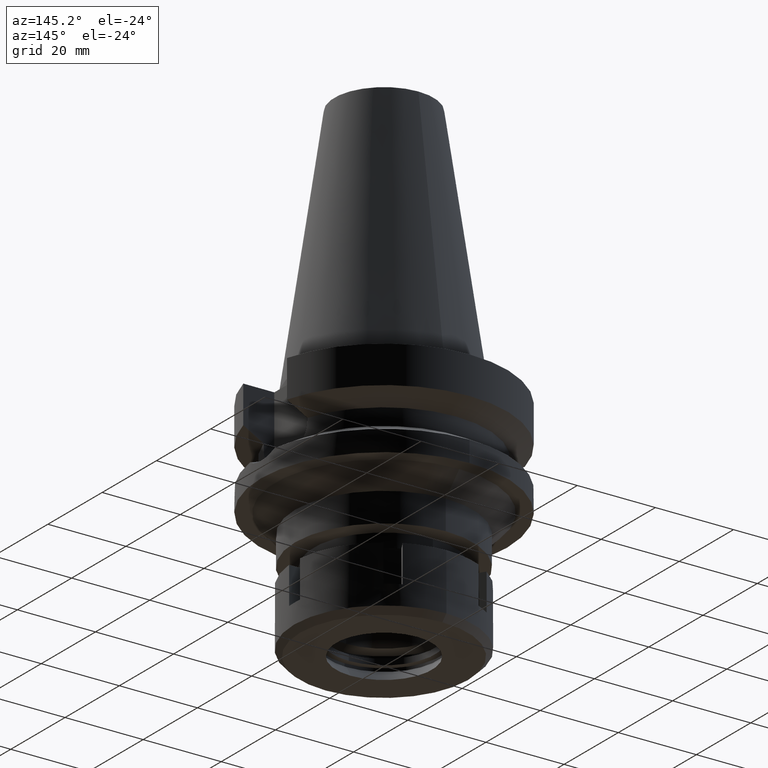
[diagram: clean part render]
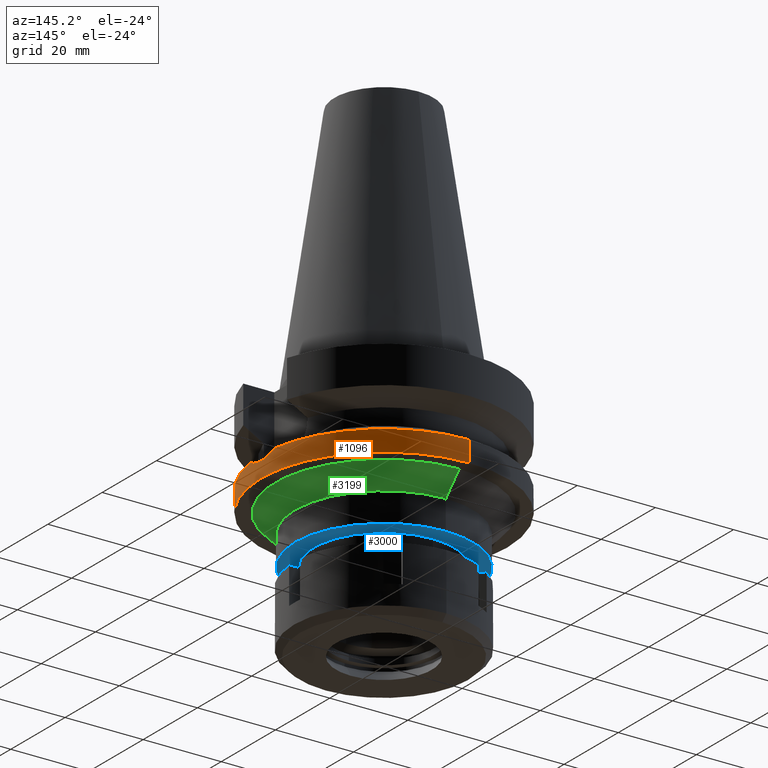
[diagram: same view with three faces highlighted in distinct colors, each labeled with its STEP entity id]
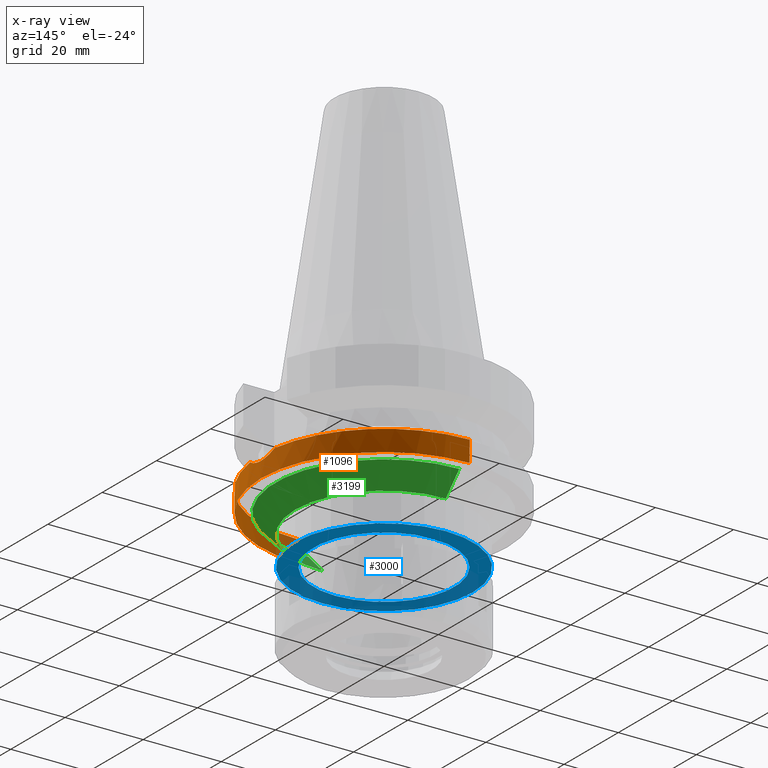
[diagram: x-ray of the same camera — body ghosted, the three highlighted faces saturated]
A machine part, auxiliary view with three faces highlighted in distinct colors.
The next image is the same camera in x-ray (body ghosted, the three faces saturated) — at least one of them is partly hidden behind the body in this view.
Their STEP definitions:

[orange] entity #1096 — the highlighted cylindrical surface (partial cylindrical patch) has radius 31.5 mm, axis along (0, 0, -1).
#20 = VERTEX_POINT ( 'NONE', #3118 ) ;
#29 = VERTEX_POINT ( 'NONE', #2839 ) ;
#37 = CARTESIAN_POINT ( 'NONE',  ( 31.27812972765459776, -3.746556029827460943, -22.08615384572640750 ) ) ;
#62 = VECTOR ( 'NONE', #872, 1000.000000000000000 ) ;
#99 = DIRECTION ( 'NONE',  ( 0.0000000000000000000, -1.000000000000000000, 0.0000000000000000000 ) ) ;
#110 = AXIS2_PLACEMENT_3D ( 'NONE', #2584, #2567, #99 ) ;
#126 = EDGE_CURVE ( 'NONE', #29, #2284, #1961, .T. ) ;
#231 = DIRECTION ( 'NONE',  ( 0.0000000000000000000, 0.0000000000000000000, -1.000000000000000000 ) ) ;
#234 = VECTOR ( 'NONE', #3016, 1000.000000000000000 ) ;
#304 = CARTESIAN_POINT ( 'NONE',  ( 0.0000000000000000000, -31.50000000000000000, -21.63449434733000132 ) ) ;
#331 = CYLINDRICAL_SURFACE ( 'NONE', #110, 31.50000000000000000 ) ;
#433 = EDGE_CURVE ( 'NONE', #2665, #29, #620, .T. ) ;
#451 = CARTESIAN_POINT ( 'NONE',  ( 0.0000000000000000000, 31.50000000000000000, -21.63449434733000132 ) ) ;
#493 = CARTESIAN_POINT ( 'NONE',  ( 31.49999999999999289, 0.3825415460330544581, -23.00000000000000000 ) ) ;
#507 = CARTESIAN_POINT ( 'NONE',  ( 31.28513683630109554, 3.747769717672651435, -22.12956222792141503 ) ) ;
#620 = LINE ( 'NONE', #304, #234 ) ;
#625 = CARTESIAN_POINT ( 'NONE',  ( 0.0000000000000000000, 31.50000000000000000, -21.63449434733000132 ) ) ;
#661 = ORIENTED_EDGE ( 'NONE', *, *, #3308, .F. ) ;
#785 = CARTESIAN_POINT ( 'NONE',  ( 31.36328283765536895, 3.007832628102879102, -22.45025453287394512 ) ) ;
#839 = CARTESIAN_POINT ( 'NONE',  ( 31.17899877608999759, 4.485536235554000051, -21.63449434733000132 ) ) ;
#872 = DIRECTION ( 'NONE',  ( 0.0000000000000000000, 1.099151708819000049E-13, -1.000000000000000000 ) ) ;
#926 = CARTESIAN_POINT ( 'NONE',  ( 0.0000000000000000000, -31.50000000000000000, -21.63449434733000132 ) ) ;
#1069 = ORIENTED_EDGE ( 'NONE', *, *, #126, .T. ) ;
#1080 = DIRECTION ( 'NONE',  ( 0.0000000000000000000, 0.0000000000000000000, 1.000000000000000000 ) ) ;
#1096 = ADVANCED_FACE ( 'NONE', ( #1719 ), #331, .T. ) ;
#1112 = B_SPLINE_CURVE_WITH_KNOTS ( 'NONE', 3,
 ( #2160, #493, #1589, #2134, #2934, #3519, #2111, #3547, #2660, #1370, #1574, #2963, #785, #507, #839 ),
 .UNSPECIFIED., .F., .F.,
 ( 4, 2, 2, 1, 1, 1, 2, 2, 4 ),
 ( 0.0000000000000000000, 0.2499999999999952260, 0.3749999999999928391, 0.4374999999999916733, 0.4687499999999911737, 0.4843749999999910072, 0.4921874999999911182, 0.4999999999999911182, 1.000000000000000000 ),
 .UNSPECIFIED. ) ;
#1129 = LINE ( 'NONE', #625, #62 ) ;
#1149 = CARTESIAN_POINT ( 'NONE',  ( 31.17899877608999759, -4.485536235554000051, -21.63449434733000132 ) ) ;
#1164 = B_SPLINE_CURVE_WITH_KNOTS ( 'NONE', 3,
 ( #1149, #1711, #37, #1936, #1982, #2726, #2016, #1389, #3337, #3357, #2787, #2218, #1189, #1412, #2807 ),
 .UNSPECIFIED., .F., .F.,
 ( 4, 2, 2, 1, 1, 1, 2, 2, 4 ),
 ( 0.0000000000000000000, 0.2500000000000022204, 0.3750000000000027756, 0.4375000000000030531, 0.4687500000000024980, 0.4843750000000028866, 0.4921875000000029421, 0.5000000000000028866, 1.000000000000000000 ),
 .UNSPECIFIED. ) ;
#1189 = CARTESIAN_POINT ( 'NONE',  ( 31.47114290507603585, -1.554796662875398860, -22.89008434586669338 ) ) ;
#1312 = ORIENTED_EDGE ( 'NONE', *, *, #3270, .F. ) ;
#1323 = CARTESIAN_POINT ( 'NONE',  ( 31.17899877608999759, 4.485536235554000051, -21.63449434733000132 ) ) ;
#1367 = ORIENTED_EDGE ( 'NONE', *, *, #1377, .T. ) ;
#1370 = CARTESIAN_POINT ( 'NONE',  ( 31.41700835831544936, 2.283543664088542702, -22.66933216881303892 ) ) ;
#1377 = EDGE_CURVE ( 'NONE', #2004, #2665, #3102, .T. ) ;
#1389 = CARTESIAN_POINT ( 'NONE',  ( 31.40207367290672735, -2.480881812375018036, -22.60840945409886160 ) ) ;
#1412 = CARTESIAN_POINT ( 'NONE',  ( 31.49999999999999289, -0.7651554265627612539, -23.00000000000000000 ) ) ;
#1426 = DIRECTION ( 'NONE',  ( 0.0000000000000000000, 1.000000000000000000, 0.0000000000000000000 ) ) ;
#1574 = CARTESIAN_POINT ( 'NONE',  ( 31.41523313603343581, 2.307851765022951529, -22.66209965112946279 ) ) ;
#1589 = CARTESIAN_POINT ( 'NONE',  ( 31.49278639834608029, 0.7710438191442904321, -22.97268655626765010 ) ) ;
#1711 = CARTESIAN_POINT ( 'NONE',  ( 31.23206219162538488, -4.116692003503404251, -21.88200209917985717 ) ) ;
#1719 = FACE_OUTER_BOUND ( 'NONE', #1836, .T. ) ;
#1730 = DIRECTION ( 'NONE',  ( 0.0000000000000000000, 0.0000000000000000000, -1.000000000000000000 ) ) ;
#1836 = EDGE_LOOP ( 'NONE', ( #1367, #1908, #1069, #1312, #2197, #3401, #661 ) ) ;
#1908 = ORIENTED_EDGE ( 'NONE', *, *, #433, .T. ) ;
#1936 = CARTESIAN_POINT ( 'NONE',  ( 31.33673721243911814, -3.204096009680024171, -22.33755624069154422 ) ) ;
#1961 = CIRCLE ( 'NONE', #3445, 31.50000000000000000 ) ;
#1982 = CARTESIAN_POINT ( 'NONE',  ( 31.35452407082409110, -3.025350768015228287, -22.41224209237034870 ) ) ;
#1985 = EDGE_CURVE ( 'NONE', #2517, #3095, #3107, .T. ) ;
#2004 = VERTEX_POINT ( 'NONE', #3354 ) ;
#2016 = CARTESIAN_POINT ( 'NONE',  ( 31.38995345626431543, -2.631089804077731742, -22.55883194699761773 ) ) ;
#2025 = AXIS2_PLACEMENT_3D ( 'NONE', #2057, #1730, #1426 ) ;
#2057 = CARTESIAN_POINT ( 'NONE',  ( 0.0000000000000000000, 0.0000000000000000000, -21.63449434733000132 ) ) ;
#2111 = CARTESIAN_POINT ( 'NONE',  ( 31.43710641057976929, 1.991379779500842551, -22.75094280103727584 ) ) ;
#2134 = CARTESIAN_POINT ( 'NONE',  ( 31.47114559338427142, 1.356374569918259887, -22.88735630193508186 ) ) ;
#2157 = DIRECTION ( 'NONE',  ( 0.0000000000000000000, -1.000000000000000000, 0.0000000000000000000 ) ) ;
#2160 = CARTESIAN_POINT ( 'NONE',  ( 31.50000000000000000, 0.0000000000000000000, -23.00000000000000000 ) ) ;
#2187 = DIRECTION ( 'NONE',  ( 0.9898094849552905306, -0.1423979757318985240, 0.0000000000000000000 ) ) ;
#2197 = ORIENTED_EDGE ( 'NONE', *, *, #1985, .T. ) ;
#2218 = CARTESIAN_POINT ( 'NONE',  ( 31.41252693101175097, -2.344406219112583845, -22.65106619706668312 ) ) ;
#2284 = VERTEX_POINT ( 'NONE', #2619 ) ;
#2517 = VERTEX_POINT ( 'NONE', #451 ) ;
#2567 = DIRECTION ( 'NONE',  ( 0.0000000000000000000, 0.0000000000000000000, -1.000000000000000000 ) ) ;
#2584 = CARTESIAN_POINT ( 'NONE',  ( 0.0000000000000000000, 2.097452572899999775E-14, 71.26999999999999602 ) ) ;
#2619 = CARTESIAN_POINT ( 'NONE',  ( 0.0000000000000000000, 31.50000000000000000, -27.00000000000000000 ) ) ;
#2660 = CARTESIAN_POINT ( 'NONE',  ( 31.41965005813988299, 2.247072451043907737, -22.68008986004117133 ) ) ;
#2665 = VERTEX_POINT ( 'NONE', #926 ) ;
#2726 = CARTESIAN_POINT ( 'NONE',  ( 31.37858090358671603, -2.761758643156226434, -22.51201132474822941 ) ) ;
#2787 = CARTESIAN_POINT ( 'NONE',  ( 31.41185438972013344, -2.353388662156735478, -22.64832348433433040 ) ) ;
#2807 = CARTESIAN_POINT ( 'NONE',  ( 31.50000000000000000, 0.0000000000000000000, -23.00000000000000000 ) ) ;
#2839 = CARTESIAN_POINT ( 'NONE',  ( 0.0000000000000000000, -31.50000000000000000, -27.00000000000000000 ) ) ;
#2934 = CARTESIAN_POINT ( 'NONE',  ( 31.46212859131685491, 1.551903289041077105, -22.85152805523050290 ) ) ;
#2963 = CARTESIAN_POINT ( 'NONE',  ( 31.41422043550432619, 2.321593114320719131, -22.65797165830062809 ) ) ;
#3016 = DIRECTION ( 'NONE',  ( 0.0000000000000000000, -1.105773104655000034E-13, -1.000000000000000000 ) ) ;
#3024 = CARTESIAN_POINT ( 'NONE',  ( 0.0000000000000000000, 0.0000000000000000000, -21.63449434733000132 ) ) ;
#3068 = EDGE_CURVE ( 'NONE', #20, #3095, #1112, .T. ) ;
#3095 = VERTEX_POINT ( 'NONE', #1323 ) ;
#3102 = CIRCLE ( 'NONE', #3149, 31.50000000000001421 ) ;
#3107 = CIRCLE ( 'NONE', #2025, 31.50000000000000000 ) ;
#3118 = CARTESIAN_POINT ( 'NONE',  ( 31.50000000000000000, 0.0000000000000000000, -23.00000000000000000 ) ) ;
#3149 = AXIS2_PLACEMENT_3D ( 'NONE', #3024, #231, #2187 ) ;
#3270 = EDGE_CURVE ( 'NONE', #2517, #2284, #1129, .T. ) ;
#3308 = EDGE_CURVE ( 'NONE', #2004, #20, #1164, .T. ) ;
#3337 = CARTESIAN_POINT ( 'NONE',  ( 31.40784684085754819, -2.406367806326312309, -22.63197621437058160 ) ) ;
#3354 = CARTESIAN_POINT ( 'NONE',  ( 31.17899877608999759, -4.485536235554000051, -21.63449434733000132 ) ) ;
#3357 = CARTESIAN_POINT ( 'NONE',  ( 31.41025956847139611, -2.374562832929513423, -22.64181864171869307 ) ) ;
#3401 = ORIENTED_EDGE ( 'NONE', *, *, #3068, .F. ) ;
#3445 = AXIS2_PLACEMENT_3D ( 'NONE', #3516, #1080, #2157 ) ;
#3516 = CARTESIAN_POINT ( 'NONE',  ( 0.0000000000000000000, 2.097452572899999775E-14, -27.00000000000000000 ) ) ;
#3519 = CARTESIAN_POINT ( 'NONE',  ( 31.44589798759550447, 1.844932280238382516, -22.78637270922378022 ) ) ;
#3547 = CARTESIAN_POINT ( 'NONE',  ( 31.42566608920675009, 2.161912855785532273, -22.70455434718754262 ) ) ;

[blue] entity #3000 — the highlighted planar face has unit normal (0, 0, -1).
#207 = VERTEX_POINT ( 'NONE', #3461 ) ;
#278 = ORIENTED_EDGE ( 'NONE', *, *, #788, .F. ) ;
#298 = VERTEX_POINT ( 'NONE', #1915 ) ;
#332 = DIRECTION ( 'NONE',  ( 0.0000000000000000000, -1.000000000000000000, 0.0000000000000000000 ) ) ;
#366 = AXIS2_PLACEMENT_3D ( 'NONE', #3034, #831, #3056 ) ;
#404 = PLANE ( 'NONE',  #1464 ) ;
#417 = CIRCLE ( 'NONE', #366, 18.00000000000000000 ) ;
#421 = DIRECTION ( 'NONE',  ( 0.0000000000000000000, 0.0000000000000000000, -1.000000000000000000 ) ) ;
#502 = CARTESIAN_POINT ( 'NONE',  ( 0.0000000000000000000, 18.00000000000000000, -39.50000000000000000 ) ) ;
#526 = CIRCLE ( 'NONE', #1285, 22.75000000000000000 ) ;
#677 = FACE_BOUND ( 'NONE', #2845, .T. ) ;
#731 = DIRECTION ( 'NONE',  ( 0.0000000000000000000, -1.000000000000000000, 0.0000000000000000000 ) ) ;
#754 = CARTESIAN_POINT ( 'NONE',  ( 0.0000000000000000000, 2.097452572899999775E-14, -39.50000000000000000 ) ) ;
#788 = EDGE_CURVE ( 'NONE', #961, #2190, #1342, .T. ) ;
#831 = DIRECTION ( 'NONE',  ( 0.0000000000000000000, 0.0000000000000000000, -1.000000000000000000 ) ) ;
#894 = EDGE_CURVE ( 'NONE', #207, #298, #526, .T. ) ;
#961 = VERTEX_POINT ( 'NONE', #2734 ) ;
#1155 = CARTESIAN_POINT ( 'NONE',  ( 0.0000000000000000000, 2.097452572899999775E-14, -39.50000000000000000 ) ) ;
#1285 = AXIS2_PLACEMENT_3D ( 'NONE', #1155, #2482, #2973 ) ;
#1342 = CIRCLE ( 'NONE', #1799, 18.00000000000000000 ) ;
#1401 = CARTESIAN_POINT ( 'NONE',  ( 0.0000000000000000000, 2.097452572899999775E-14, -39.50000000000000000 ) ) ;
#1464 = AXIS2_PLACEMENT_3D ( 'NONE', #3172, #421, #731 ) ;
#1593 = EDGE_LOOP ( 'NONE', ( #2028, #2341 ) ) ;
#1682 = CIRCLE ( 'NONE', #2250, 22.75000000000000000 ) ;
#1688 = DIRECTION ( 'NONE',  ( 0.0000000000000000000, 0.0000000000000000000, 1.000000000000000000 ) ) ;
#1799 = AXIS2_PLACEMENT_3D ( 'NONE', #754, #3432, #2356 ) ;
#1915 = CARTESIAN_POINT ( 'NONE',  ( 0.0000000000000000000, -22.75000000000000000, -39.50000000000000000 ) ) ;
#2028 = ORIENTED_EDGE ( 'NONE', *, *, #894, .F. ) ;
#2084 = FACE_OUTER_BOUND ( 'NONE', #1593, .T. ) ;
#2190 = VERTEX_POINT ( 'NONE', #502 ) ;
#2250 = AXIS2_PLACEMENT_3D ( 'NONE', #1401, #1688, #332 ) ;
#2341 = ORIENTED_EDGE ( 'NONE', *, *, #2346, .F. ) ;
#2346 = EDGE_CURVE ( 'NONE', #298, #207, #1682, .T. ) ;
#2356 = DIRECTION ( 'NONE',  ( 0.0000000000000000000, -1.000000000000000000, 0.0000000000000000000 ) ) ;
#2366 = EDGE_CURVE ( 'NONE', #2190, #961, #417, .T. ) ;
#2482 = DIRECTION ( 'NONE',  ( 0.0000000000000000000, 0.0000000000000000000, 1.000000000000000000 ) ) ;
#2734 = CARTESIAN_POINT ( 'NONE',  ( 0.0000000000000000000, -18.00000000000000000, -39.50000000000000000 ) ) ;
#2845 = EDGE_LOOP ( 'NONE', ( #3007, #278 ) ) ;
#2973 = DIRECTION ( 'NONE',  ( 0.0000000000000000000, 1.000000000000000000, 0.0000000000000000000 ) ) ;
#3000 = ADVANCED_FACE ( 'NONE', ( #2084, #677 ), #404, .T. ) ;
#3007 = ORIENTED_EDGE ( 'NONE', *, *, #2366, .F. ) ;
#3034 = CARTESIAN_POINT ( 'NONE',  ( 0.0000000000000000000, 2.097452572899999775E-14, -39.50000000000000000 ) ) ;
#3056 = DIRECTION ( 'NONE',  ( 0.0000000000000000000, 1.000000000000000000, 0.0000000000000000000 ) ) ;
#3172 = CARTESIAN_POINT ( 'NONE',  ( 0.0000000000000000000, 0.0000000000000000000, -39.50000000000000000 ) ) ;
#3432 = DIRECTION ( 'NONE',  ( 0.0000000000000000000, 0.0000000000000000000, -1.000000000000000000 ) ) ;
#3461 = CARTESIAN_POINT ( 'NONE',  ( 0.0000000000000000000, 22.75000000000000000, -39.50000000000000000 ) ) ;

[green] entity #3199 — the highlighted conical surface has half-angle 45 deg.
#5 = CARTESIAN_POINT ( 'NONE',  ( 0.0000000000000000000, 0.0000000000000000000, -27.00000000000000000 ) ) ;
#12 = DIRECTION ( 'NONE',  ( 0.0000000000000000000, -0.7071067811865474617, -0.7071067811865474617 ) ) ;
#76 = CARTESIAN_POINT ( 'NONE',  ( 0.0000000000000000000, -27.75000000000000000, -27.00000000000000000 ) ) ;
#259 = DIRECTION ( 'NONE',  ( 0.0000000000000000000, 1.000000000000000000, 0.0000000000000000000 ) ) ;
#263 = CARTESIAN_POINT ( 'NONE',  ( 0.0000000000000000000, 27.75000000000000000, -27.00000000000000000 ) ) ;
#303 = VECTOR ( 'NONE', #2555, 1000.000000000000114 ) ;
#358 = ORIENTED_EDGE ( 'NONE', *, *, #837, .T. ) ;
#434 = ORIENTED_EDGE ( 'NONE', *, *, #450, .F. ) ;
#450 = EDGE_CURVE ( 'NONE', #2731, #1714, #705, .T. ) ;
#465 = EDGE_CURVE ( 'NONE', #2661, #2731, #2443, .T. ) ;
#508 = ORIENTED_EDGE ( 'NONE', *, *, #639, .T. ) ;
#639 = EDGE_CURVE ( 'NONE', #2046, #1714, #1762, .T. ) ;
#705 = CIRCLE ( 'NONE', #1180, 22.75000000000000000 ) ;
#778 = AXIS2_PLACEMENT_3D ( 'NONE', #2711, #3066, #1999 ) ;
#835 = CARTESIAN_POINT ( 'NONE',  ( 0.0000000000000000000, 0.0000000000000000000, -32.00000000000000000 ) ) ;
#837 = EDGE_CURVE ( 'NONE', #2661, #2046, #2917, .T. ) ;
#857 = CARTESIAN_POINT ( 'NONE',  ( 0.0000000000000000000, 27.75000000000000000, -27.00000000000000000 ) ) ;
#1050 = VECTOR ( 'NONE', #12, 1000.000000000000114 ) ;
#1180 = AXIS2_PLACEMENT_3D ( 'NONE', #835, #3253, #2780 ) ;
#1257 = CARTESIAN_POINT ( 'NONE',  ( 0.0000000000000000000, -22.75000000000000000, -32.00000000000000000 ) ) ;
#1501 = ORIENTED_EDGE ( 'NONE', *, *, #465, .F. ) ;
#1641 = FACE_OUTER_BOUND ( 'NONE', #2052, .T. ) ;
#1714 = VERTEX_POINT ( 'NONE', #1257 ) ;
#1736 = CARTESIAN_POINT ( 'NONE',  ( 0.0000000000000000000, 22.75000000000000000, -32.00000000000000000 ) ) ;
#1762 = LINE ( 'NONE', #76, #303 ) ;
#1999 = DIRECTION ( 'NONE',  ( 0.0000000000000000000, 1.000000000000000000, 0.0000000000000000000 ) ) ;
#2046 = VERTEX_POINT ( 'NONE', #2503 ) ;
#2052 = EDGE_LOOP ( 'NONE', ( #358, #508, #434, #1501 ) ) ;
#2227 = DIRECTION ( 'NONE',  ( 0.0000000000000000000, 0.0000000000000000000, -1.000000000000000000 ) ) ;
#2237 = AXIS2_PLACEMENT_3D ( 'NONE', #5, #2227, #259 ) ;
#2443 = LINE ( 'NONE', #263, #1050 ) ;
#2503 = CARTESIAN_POINT ( 'NONE',  ( 0.0000000000000000000, -27.75000000000000000, -27.00000000000000000 ) ) ;
#2555 = DIRECTION ( 'NONE',  ( 0.0000000000000000000, 0.7071067811865474617, -0.7071067811865474617 ) ) ;
#2661 = VERTEX_POINT ( 'NONE', #857 ) ;
#2711 = CARTESIAN_POINT ( 'NONE',  ( 0.0000000000000000000, 0.0000000000000000000, -29.50000000000000000 ) ) ;
#2731 = VERTEX_POINT ( 'NONE', #1736 ) ;
#2780 = DIRECTION ( 'NONE',  ( 0.0000000000000000000, 1.000000000000000000, 0.0000000000000000000 ) ) ;
#2818 = CONICAL_SURFACE ( 'NONE', #778, 25.25000000000000000, 0.7853981633972997312 ) ;
#2917 = CIRCLE ( 'NONE', #2237, 27.75000000000000000 ) ;
#3066 = DIRECTION ( 'NONE',  ( 0.0000000000000000000, 0.0000000000000000000, 1.000000000000000000 ) ) ;
#3199 = ADVANCED_FACE ( 'NONE', ( #1641 ), #2818, .T. ) ;
#3253 = DIRECTION ( 'NONE',  ( 0.0000000000000000000, 0.0000000000000000000, -1.000000000000000000 ) ) ;